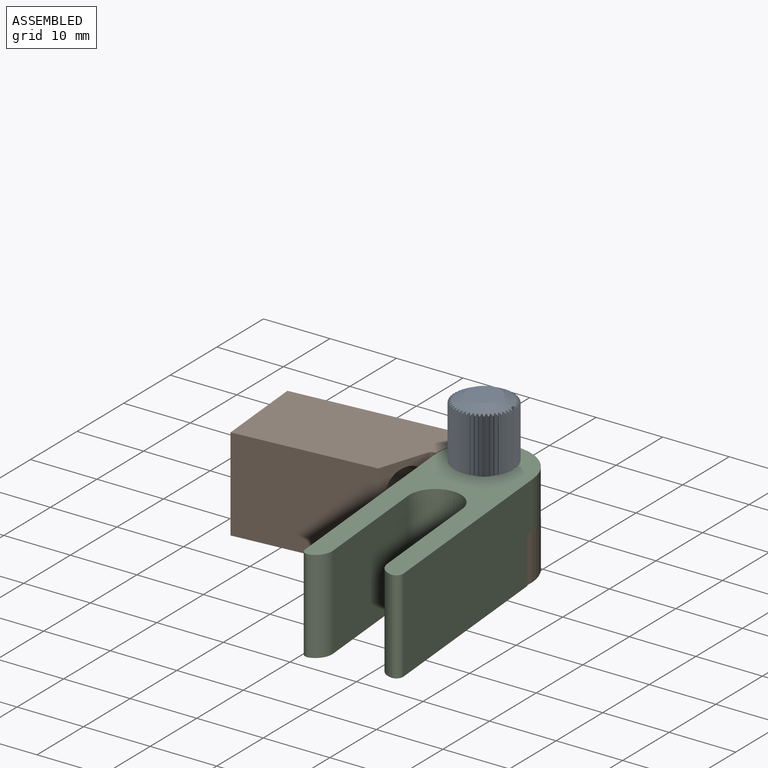
[diagram: assembled view]
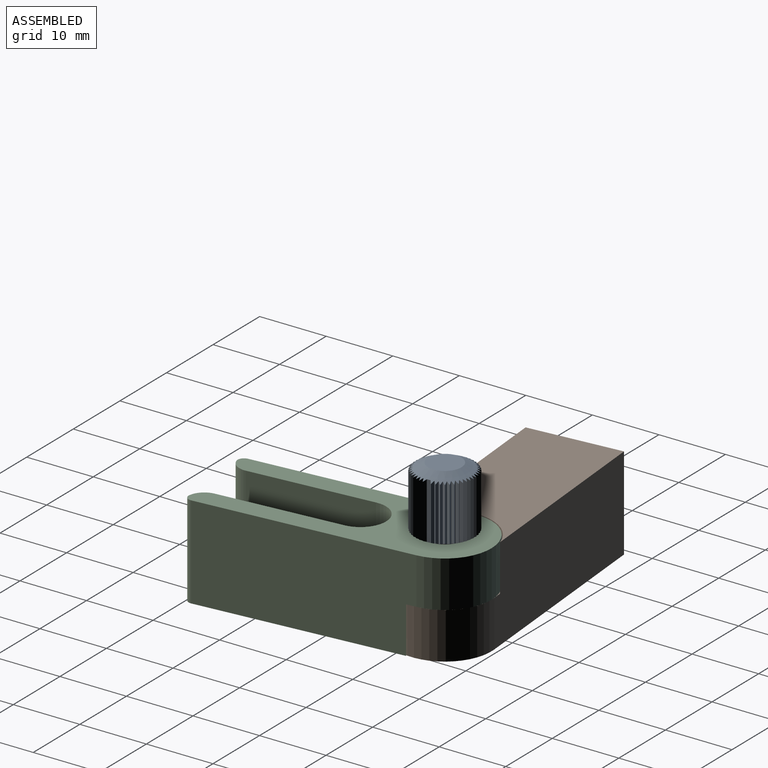
[diagram: assembled view, second angle]
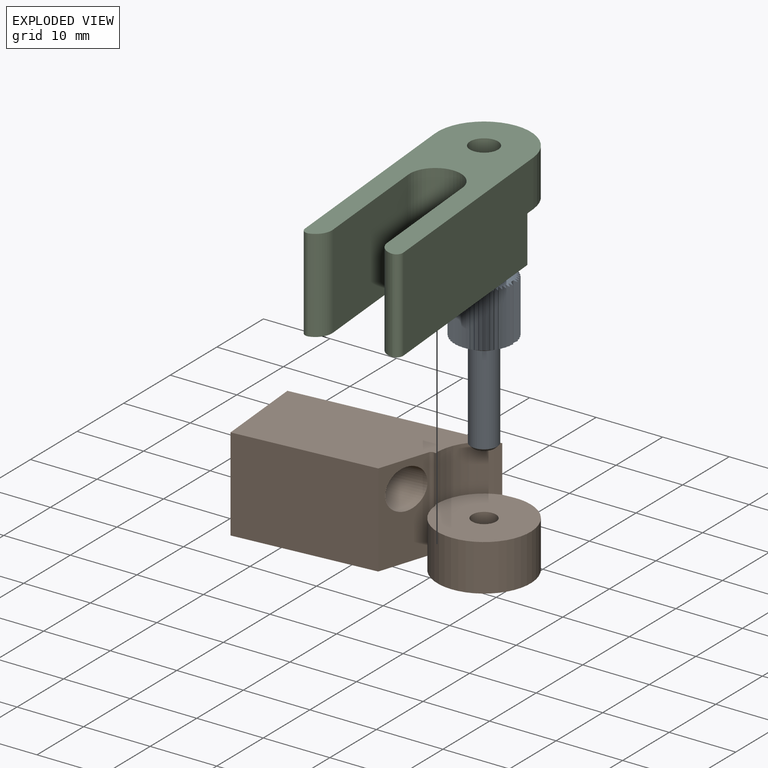
[diagram: exploded view]
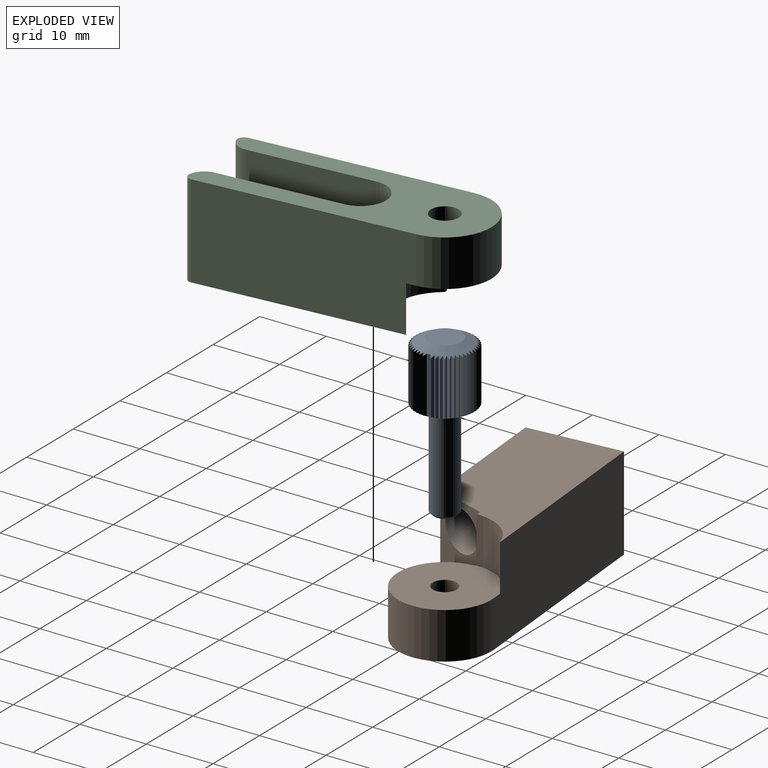
[diagram: exploded view, second angle]
ASSEMBLY  parts=3 mates=2
PART A: 150 faces, bbox 24x9x9 mm
  f0: plane 8.52x0.52mm, normal (0,-0.9,-0.44), area 4.7mm2, adj f1,f142,f143,f145
  f1: cylinder r=4mm len=8.5mm, axis (-1,0,0), area 0.2mm2, adj f0,f2,f143,f145
  f2: plane 8.52x0.58mm, normal (0,0.07,1), area 4.7mm2, adj f1,f3,f143,f145
  f3: plane 8.52x0.49mm, normal (0,-0.83,-0.56), area 4.7mm2, adj f2,f4,f143,f145
  f4: cylinder r=4mm len=8.5mm, axis (-1,0,0), area 0.2mm2, adj f3,f5,f143,f145
  f5: plane 8.52x0.58mm, normal (0,-0.06,1), area 4.7mm2, adj f4,f6,f143,f145
  f6: plane 8.52x0.44mm, normal (0,-0.75,-0.66), area 4.7mm2, adj f5,f7,f143,f145
  f7: cylinder r=4mm len=8.5mm, axis (-1,0,0), area 0.2mm2, adj f6,f8,f143,f145
  f8: plane 8.52x0.57mm, normal (0,-0.19,0.98), area 4.7mm2, adj f7,f9,f143,f145
  f9: plane 8.52x0.44mm, normal (0,-0.66,-0.75), area 4.7mm2, adj f8,f10,f143,f145
  f10: cylinder r=4mm len=8.5mm, axis (-1,0,0), area 0.2mm2, adj f9,f11,f143,f145
  f11: plane 8.52x0.55mm, normal (0,-0.32,0.95), area 4.7mm2, adj f10,f12,f143,f145
  f12: plane 8.52x0.49mm, normal (0,-0.55,-0.83), area 4.7mm2, adj f11,f13,f143,f145
  f13: cylinder r=4mm len=8.5mm, axis (-1,0,0), area 0.2mm2, adj f12,f14,f143,f145
  f14: plane 8.52x0.52mm, normal (0,-0.44,0.9), area 4.7mm2, adj f13,f15,f143,f145
  f15: plane 8.52x0.52mm, normal (0,-0.44,-0.9), area 4.7mm2, adj f14,f16,f143,f145
  f16: cylinder r=4mm len=8.5mm, axis (-1,0,0), area 0.2mm2, adj f15,f17,f143,f145
  f17: plane 8.52x0.49mm, normal (0,-0.55,0.83), area 4.7mm2, adj f16,f18,f143,f145
  f18: plane 8.52x0.55mm, normal (0,-0.32,-0.95), area 4.7mm2, adj f17,f19,f143,f145
  f19: cylinder r=4mm len=8.5mm, axis (-1,0,0), area 0.2mm2, adj f18,f20,f143,f145
  f20: plane 8.52x0.44mm, normal (0,-0.66,0.75), area 4.7mm2, adj f19,f21,f143,f145
  f21: plane 8.52x0.57mm, normal (0,-0.19,-0.98), area 4.7mm2, adj f20,f22,f143,f145
  f22: cylinder r=4mm len=8.5mm, axis (-1,0,0), area 0.2mm2, adj f21,f23,f143,f145
  f23: plane 8.52x0.44mm, normal (0,-0.75,0.66), area 4.7mm2, adj f22,f24,f143,f145
  f24: plane 8.52x0.58mm, normal (0,-0.06,-1), area 4.7mm2, adj f23,f25,f143,f145
  f25: cylinder r=4mm len=8.5mm, axis (-1,0,0), area 0.2mm2, adj f24,f26,f143,f145
  f26: plane 8.52x0.49mm, normal (0,-0.83,0.56), area 4.7mm2, adj f25,f27,f143,f145
  f27: plane 8.52x0.58mm, normal (0,0.07,-1), area 4.7mm2, adj f26,f28,f143,f145
  f28: cylinder r=4mm len=8.5mm, axis (-1,0,0), area 0.2mm2, adj f27,f29,f143,f145
  f29: plane 8.52x0.52mm, normal (0,-0.9,0.44), area 4.7mm2, adj f28,f30,f143,f145
  f30: plane 8.52x0.57mm, normal (0,0.2,-0.98), area 4.7mm2, adj f29,f31,f143,f145
  f31: cylinder r=4mm len=8.5mm, axis (-1,0,0), area 0.2mm2, adj f30,f32,f143,f145
  f32: plane 8.52x0.55mm, normal (0,-0.95,0.32), area 4.7mm2, adj f31,f33,f143,f145
  f33: plane 8.52x0.55mm, normal (0,0.32,-0.95), area 4.7mm2, adj f32,f34,f143,f145
  f34: cylinder r=4mm len=8.5mm, axis (-1,0,0), area 0.2mm2, adj f33,f35,f143,f145
  f35: plane 8.52x0.57mm, normal (0,-0.98,0.2), area 4.7mm2, adj f34,f36,f143,f145
  f36: plane 8.52x0.52mm, normal (0,0.44,-0.9), area 4.7mm2, adj f35,f37,f143,f145
  f37: cylinder r=4mm len=8.5mm, axis (-1,0,0), area 0.2mm2, adj f36,f38,f143,f145
  f38: plane 8.52x0.58mm, normal (0,-1,0.07), area 4.7mm2, adj f37,f39,f143,f145
  f39: plane 8.52x0.49mm, normal (0,0.56,-0.83), area 4.7mm2, adj f38,f40,f143,f145
  f40: cylinder r=4mm len=8.5mm, axis (-1,0,0), area 0.2mm2, adj f39,f41,f143,f145
  f41: plane 8.52x0.58mm, normal (0,-1,-0.06), area 4.7mm2, adj f40,f42,f143,f145
  f42: plane 8.52x0.44mm, normal (0,0.66,-0.75), area 4.7mm2, adj f41,f43,f143,f145
  f43: cylinder r=4mm len=8.5mm, axis (-1,0,0), area 0.2mm2, adj f42,f44,f143,f145
  f44: plane 8.52x0.57mm, normal (0,-0.98,-0.19), area 4.7mm2, adj f43,f45,f143,f145
  f45: plane 8.52x0.44mm, normal (0,0.75,-0.66), area 4.7mm2, adj f44,f46,f143,f145
  f46: cylinder r=4mm len=8.5mm, axis (-1,0,0), area 0.2mm2, adj f45,f47,f143,f145
  f47: plane 8.52x0.55mm, normal (0,-0.95,-0.32), area 4.7mm2, adj f46,f48,f143,f145
  f48: plane 8.52x0.49mm, normal (0,0.83,-0.55), area 4.7mm2, adj f47,f49,f143,f145
  f49: cylinder r=4mm len=8.5mm, axis (-1,0,0), area 0.2mm2, adj f48,f50,f143,f145
  f50: plane 8.52x0.52mm, normal (0,-0.9,-0.44), area 4.7mm2, adj f49,f51,f143,f145
  f51: plane 8.52x0.52mm, normal (0,0.9,-0.44), area 4.7mm2, adj f50,f52,f143,f145
  f52: cylinder r=4mm len=8.5mm, axis (-1,0,0), area 0.2mm2, adj f51,f53,f143,f145
  f53: plane 8.52x0.49mm, normal (0,-0.83,-0.55), area 4.7mm2, adj f52,f54,f143,f145
  f54: plane 8.52x0.55mm, normal (0,0.95,-0.32), area 4.7mm2, adj f53,f55,f143,f145
  f55: cylinder r=4mm len=8.5mm, axis (-1,0,0), area 0.2mm2, adj f54,f56,f143,f145
  f56: plane 8.52x0.44mm, normal (0,-0.75,-0.66), area 4.7mm2, adj f55,f57,f143,f145
  f57: plane 8.52x0.57mm, normal (0,0.98,-0.19), area 4.7mm2, adj f56,f58,f143,f145
  f58: cylinder r=4mm len=8.5mm, axis (-1,0,0), area 0.2mm2, adj f57,f59,f143,f145
  f59: plane 8.52x0.44mm, normal (0,-0.66,-0.75), area 4.7mm2, adj f58,f60,f143,f145
  f60: plane 8.52x0.58mm, normal (0,1,-0.06), area 4.7mm2, adj f59,f61,f143,f145
  f61: cylinder r=4mm len=8.5mm, axis (-1,0,0), area 0.2mm2, adj f60,f62,f143,f145
  f62: plane 8.52x0.49mm, normal (0,-0.56,-0.83), area 4.7mm2, adj f61,f63,f143,f145
  f63: plane 8.52x0.58mm, normal (0,1,0.07), area 4.7mm2, adj f62,f64,f143,f145
  f64: cylinder r=4mm len=8.5mm, axis (-1,0,0), area 0.2mm2, adj f63,f65,f143,f145
  f65: plane 8.52x0.52mm, normal (0,-0.44,-0.9), area 4.7mm2, adj f64,f66,f143,f145
  f66: plane 8.52x0.57mm, normal (0,0.98,0.2), area 4.7mm2, adj f65,f67,f143,f145
  f67: cylinder r=4mm len=8.5mm, axis (-1,0,0), area 0.2mm2, adj f66,f68,f143,f145
  f68: plane 8.52x0.55mm, normal (0,-0.32,-0.95), area 4.7mm2, adj f67,f69,f143,f145
  f69: plane 8.52x0.55mm, normal (0,0.95,0.32), area 4.7mm2, adj f68,f70,f143,f145
  f70: cylinder r=4mm len=8.5mm, axis (-1,0,0), area 0.2mm2, adj f69,f71,f143,f145
  f71: plane 8.52x0.57mm, normal (0,-0.2,-0.98), area 4.7mm2, adj f70,f72,f143,f145
  f72: plane 8.52x0.52mm, normal (0,0.9,0.44), area 4.7mm2, adj f71,f73,f143,f145
  f73: cylinder r=4mm len=8.5mm, axis (-1,0,0), area 0.2mm2, adj f72,f74,f143,f145
  f74: plane 8.52x0.58mm, normal (0,-0.07,-1), area 4.7mm2, adj f73,f75,f143,f145
  f75: plane 8.52x0.49mm, normal (0,0.83,0.56), area 4.7mm2, adj f74,f76,f143,f145
  f76: cylinder r=4mm len=8.5mm, axis (-1,0,0), area 0.2mm2, adj f75,f77,f143,f145
  f77: plane 8.52x0.58mm, normal (0,0.06,-1), area 4.7mm2, adj f76,f78,f143,f145
  f78: plane 8.52x0.44mm, normal (0,0.75,0.66), area 4.7mm2, adj f77,f79,f143,f145
  f79: cylinder r=4mm len=8.5mm, axis (-1,0,0), area 0.2mm2, adj f78,f80,f143,f145
  f80: plane 8.52x0.57mm, normal (0,0.19,-0.98), area 4.7mm2, adj f79,f81,f143,f145
  f81: plane 8.52x0.44mm, normal (0,0.66,0.75), area 4.7mm2, adj f80,f82,f143,f145
  f82: cylinder r=4mm len=8.5mm, axis (-1,0,0), area 0.2mm2, adj f81,f83,f143,f145
  f83: plane 8.52x0.55mm, normal (0,0.32,-0.95), area 4.7mm2, adj f82,f84,f143,f145
  f84: plane 8.52x0.49mm, normal (0,0.55,0.83), area 4.7mm2, adj f83,f85,f143,f145
  f85: cylinder r=4mm len=8.5mm, axis (-1,0,0), area 0.2mm2, adj f84,f86,f143,f145
  f86: plane 8.52x0.52mm, normal (0,0.44,-0.9), area 4.7mm2, adj f85,f87,f143,f145
  f87: plane 8.52x0.52mm, normal (0,0.44,0.9), area 4.7mm2, adj f86,f88,f143,f145
  f88: cylinder r=4mm len=8.5mm, axis (-1,0,0), area 0.2mm2, adj f87,f89,f143,f145
  f89: plane 8.52x0.49mm, normal (0,0.55,-0.83), area 4.7mm2, adj f88,f90,f143,f145
  f90: plane 8.52x0.55mm, normal (0,0.32,0.95), area 4.7mm2, adj f89,f91,f143,f145
  f91: cylinder r=4mm len=8.5mm, axis (-1,0,0), area 0.2mm2, adj f90,f92,f143,f145
  f92: plane 8.52x0.44mm, normal (0,0.66,-0.75), area 4.7mm2, adj f91,f93,f143,f145
  f93: plane 8.52x0.57mm, normal (0,0.19,0.98), area 4.7mm2, adj f92,f94,f143,f145
  f94: cylinder r=4mm len=8.5mm, axis (-1,0,0), area 0.2mm2, adj f93,f95,f143,f145
  f95: plane 8.52x0.44mm, normal (0,0.75,-0.66), area 4.7mm2, adj f94,f96,f143,f145
  f96: plane 8.52x0.58mm, normal (0,0.06,1), area 4.7mm2, adj f95,f97,f143,f145
  f97: cylinder r=4mm len=8.5mm, axis (-1,0,0), area 0.2mm2, adj f96,f98,f143,f145
  f98: plane 8.52x0.49mm, normal (0,0.83,-0.56), area 4.7mm2, adj f97,f99,f143,f145
  f99: plane 8.52x0.58mm, normal (0,-0.07,1), area 4.7mm2, adj f98,f100,f143,f145
  f100: cylinder r=4mm len=8.5mm, axis (-1,0,0), area 0.2mm2, adj f99,f101,f143,f145
  f101: plane 8.52x0.52mm, normal (0,0.9,-0.44), area 4.7mm2, adj f100,f102,f143,f145
  f102: plane 8.52x0.57mm, normal (0,-0.2,0.98), area 4.7mm2, adj f101,f103,f143,f145
  f103: cylinder r=4mm len=8.5mm, axis (-1,0,0), area 0.2mm2, adj f102,f104,f143,f145
  f104: plane 8.52x0.55mm, normal (0,0.95,-0.32), area 4.7mm2, adj f103,f105,f143,f145
  f105: plane 8.52x0.55mm, normal (0,-0.32,0.95), area 4.7mm2, adj f104,f106,f143,f145
  f106: cylinder r=4mm len=8.5mm, axis (-1,0,0), area 0.2mm2, adj f105,f107,f143,f145
  f107: plane 8.52x0.57mm, normal (0,0.98,-0.2), area 4.7mm2, adj f106,f108,f143,f145
  f108: plane 8.52x0.52mm, normal (0,-0.44,0.9), area 4.7mm2, adj f107,f109,f143,f145
  f109: cylinder r=4mm len=8.5mm, axis (-1,0,0), area 0.2mm2, adj f108,f110,f143,f145
  f110: plane 8.52x0.58mm, normal (0,1,-0.07), area 4.7mm2, adj f109,f111,f143,f145
  f111: plane 8.52x0.49mm, normal (0,-0.56,0.83), area 4.7mm2, adj f110,f112,f143,f145
  f112: cylinder r=4mm len=8.5mm, axis (-1,0,0), area 0.2mm2, adj f111,f113,f143,f145
  f113: plane 8.52x0.58mm, normal (0,1,0.06), area 4.7mm2, adj f112,f114,f143,f145
  f114: plane 8.52x0.44mm, normal (0,-0.66,0.75), area 4.7mm2, adj f113,f115,f143,f145
  f115: cylinder r=4mm len=8.5mm, axis (-1,0,0), area 0.2mm2, adj f114,f116,f143,f145
  f116: plane 8.52x0.57mm, normal (0,0.98,0.19), area 4.7mm2, adj f115,f117,f143,f145
  f117: plane 8.52x0.44mm, normal (0,-0.75,0.66), area 4.7mm2, adj f116,f118,f143,f145
  f118: cylinder r=4mm len=8.5mm, axis (-1,0,0), area 0.2mm2, adj f117,f119,f143,f145
  f119: plane 8.52x0.55mm, normal (0,0.95,0.32), area 4.7mm2, adj f118,f120,f143,f145
  f120: plane 8.52x0.49mm, normal (0,-0.83,0.55), area 4.7mm2, adj f119,f121,f143,f145
  f121: cylinder r=4mm len=8.5mm, axis (-1,0,0), area 0.2mm2, adj f120,f122,f143,f145
  f122: plane 8.53x0.52mm, normal (0,0,1), area 4.3mm2, adj f121,f123,f143,f145
  f123: cylinder r=4mm len=8.5mm, axis (-1,0,0), area 0.2mm2, adj f122,f124,f143,f145
  f124: plane 8.52x0.49mm, normal (0,0.83,0.55), area 4.7mm2, adj f123,f125,f143,f145
  f125: plane 8.52x0.55mm, normal (0,-0.95,0.32), area 4.7mm2, adj f124,f126,f143,f145
  f126: cylinder r=4mm len=8.5mm, axis (-1,0,0), area 0.2mm2, adj f125,f127,f143,f145
  f127: plane 8.52x0.44mm, normal (0,0.75,0.66), area 4.7mm2, adj f126,f128,f143,f145
  f128: plane 8.52x0.57mm, normal (0,-0.98,0.19), area 4.7mm2, adj f127,f129,f143,f145
  f129: cylinder r=4mm len=8.5mm, axis (-1,0,0), area 0.2mm2, adj f128,f130,f143,f145
  f130: plane 8.52x0.44mm, normal (0,0.66,0.75), area 4.7mm2, adj f129,f131,f143,f145
  f131: plane 8.52x0.58mm, normal (0,-1,0.06), area 4.7mm2, adj f130,f132,f143,f145
  f132: cylinder r=4mm len=8.5mm, axis (-1,0,0), area 0.2mm2, adj f131,f133,f143,f145
  f133: plane 8.52x0.49mm, normal (0,0.56,0.83), area 4.7mm2, adj f132,f134,f143,f145
  f134: plane 8.52x0.58mm, normal (0,-1,-0.07), area 4.7mm2, adj f133,f135,f143,f145
  f135: cylinder r=4mm len=8.5mm, axis (-1,0,0), area 0.2mm2, adj f134,f136,f143,f145
  f136: plane 8.52x0.52mm, normal (0,0.44,0.9), area 4.7mm2, adj f135,f137,f143,f145
  f137: plane 8.52x0.57mm, normal (0,-0.98,-0.2), area 4.7mm2, adj f136,f138,f143,f145
  f138: cylinder r=4mm len=8.5mm, axis (-1,0,0), area 0.2mm2, adj f137,f139,f143,f145
  f139: plane 8.52x0.55mm, normal (0,0.32,0.95), area 4.7mm2, adj f138,f140,f143,f145
  f140: plane 8.52x0.55mm, normal (0,-0.95,-0.32), area 4.7mm2, adj f139,f141,f143,f145
  f141: cylinder r=4mm len=8.5mm, axis (-1,0,0), area 0.2mm2, adj f140,f142,f143,f145
  f142: plane 8.52x0.57mm, normal (0,0.2,0.98), area 4.7mm2, adj f0,f141,f143,f145
  f143: cone r=4.5mm half-angle=63.4deg, axis (-1,0,0), area 41.1mm2, adj f0,f1,f2,f3,f4,f5,f6,f7
  f144: plane 5x5mm, normal (1,0,0), area 19.6mm2, adj f143
  f145: cone r=4.5mm half-angle=63.4deg, axis (1,0,0), area 41.1mm2, adj f0,f1,f2,f3,f4,f5,f6,f7
  f146: plane 3.2x3.2mm, normal (-1,0,0), area 8mm2, adj f149
  f147: cylinder r=2mm len=13.6mm, axis (-1,0,0), area 170.9mm2, adj f148,f149
  f148: plane 5x5mm, normal (-1,0,0), area 7.1mm2, adj f145,f147
  f149: cone r=1.6mm half-angle=45deg, axis (1,0,0), area 6.4mm2, adj f146,f147
PART B: 14 faces, bbox 39x14x14 mm
  f0: plane 14.14x14mm, normal (0,1,0), area 145.2mm2, adj f1,f2,f6,f8,f9
  f1: cylinder r=7mm len=14mm, axis (0,1,0), area 230.9mm2, adj f0,f2,f6,f7
  f2: cylinder r=0.5mm len=14mm, axis (0,1,0), area 16.5mm2, adj f0,f1,f3,f7,f9,f10
  f3: plane 14x7.19mm, normal (0.92,0,0.39), area 78.6mm2, adj f2,f4,f7,f10,f13
  f4: plane 21x14mm, normal (0,0,1), area 294mm2, adj f3,f5,f7,f10
  f5: plane 14x14mm, normal (-1,0,0), area 186.4mm2, adj f4,f6,f7,f10,f11
  f6: plane 32x14mm, normal (0,0,-1), area 437.8mm2, adj f0,f1,f5,f7,f9,f10
  f7: plane 39x14mm, normal (0,-1,0), area 486.2mm2, adj f1,f2,f3,f4,f5,f6,f8
  f8: cylinder r=1.8mm len=7mm, axis (0,1,0), area 79.2mm2, adj f0,f7
  f9: cylinder r=7.15mm len=7mm, axis (0,-1,0), area 65.9mm2, adj f0,f2,f6,f10
  f10: plane 30.54x14mm, normal (0,1,0), area 341mm2, adj f2,f3,f4,f5,f6,f9
  f11: cylinder r=1.75mm len=15.42mm, axis (1,0,0), area 169.6mm2, adj f5,f12
  f12: plane 6x6mm, normal (1,0,0), area 18.7mm2, adj f11,f13
  f13: cylinder r=3mm len=8.54mm, axis (1,0,0), area 137mm2, adj f3,f12
PART C: 16 faces, bbox 14x14x40 mm
  f0: cylinder r=7.15mm len=13.08mm, axis (0,1,0), area 119.2mm2, adj f1,f6,f13,f15
  f1: plane 32x14mm, normal (1,0,0), area 437.8mm2, adj f0,f6,f7,f8,f12,f13
  f2: plane 18.52x14mm, normal (-1,0,0), area 259.3mm2, adj f3,f6,f7,f10
  f3: cylinder r=3.85mm len=14mm, axis (0,1,0), area 169.3mm2, adj f2,f4,f6,f7
  f4: plane 18.52x14mm, normal (1,0,0), area 259.3mm2, adj f3,f6,f7,f11
  f5: plane 32x14mm, normal (-1,0,0), area 419.8mm2, adj f6,f7,f9,f12,f13,f15
  f6: plane 31.54x14mm, normal (0,-1,0), area 193.3mm2, adj f0,f1,f2,f3,f4,f5,f8,f9
  f7: plane 40x14mm, normal (0,1,0), area 337.1mm2, adj f1,f2,f3,f4,f5,f8,f9,f10
  f8: cylinder r=1mm len=14mm, axis (0,-1,0), area 22mm2, adj f1,f6,f7,f10
  f9: cylinder r=1mm len=14mm, axis (0,1,0), area 22mm2, adj f5,f6,f7,f11
  f10: cylinder r=2.5mm len=14mm, axis (0,1,0), area 50.1mm2, adj f2,f6,f7,f8
  f11: cylinder r=2.5mm len=14mm, axis (0,1,0), area 50.1mm2, adj f4,f6,f7,f9
  f12: cylinder r=7mm len=14mm, axis (0,-1,0), area 153.9mm2, adj f1,f5,f7,f13
  f13: plane 14.15x14mm, normal (0,-1,0), area 143.9mm2, adj f0,f1,f5,f12,f14,f15
  f14: cylinder r=2.1mm len=7mm, axis (0,-1,0), area 92.4mm2, adj f7,f13
  f15: cylinder r=0.5mm len=7mm, axis (0,1,0), area 9.1mm2, adj f0,f5,f6,f13
PLACE A rot(axis=(-0.71,-0.03,-0.71),176.5deg) t=(-14.44,-6.26,0.67)mm
PLACE B rot(axis=(1,0.04,0.04),90.1deg) t=(-21.42,-6.87,-6.13)mm
PLACE C rot(axis=(1,0.04,0.04),90.1deg) t=(-14.44,-6.26,-6.13)mm
MATE fastened A.f1 <-> B.f1  axis (0,0,-1) through (-14.44,-6.26,-6.13)mm
MATE revolute C.f0 <-> B.f1  axis (0,0,-1) through (-14.44,-6.26,-6.13)mm
